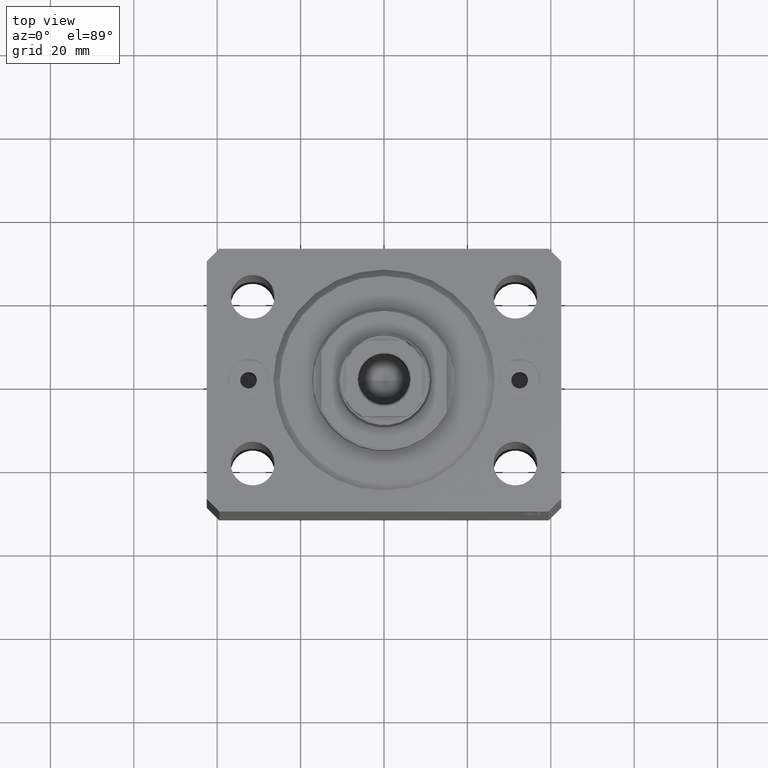
[diagram: clean part render]
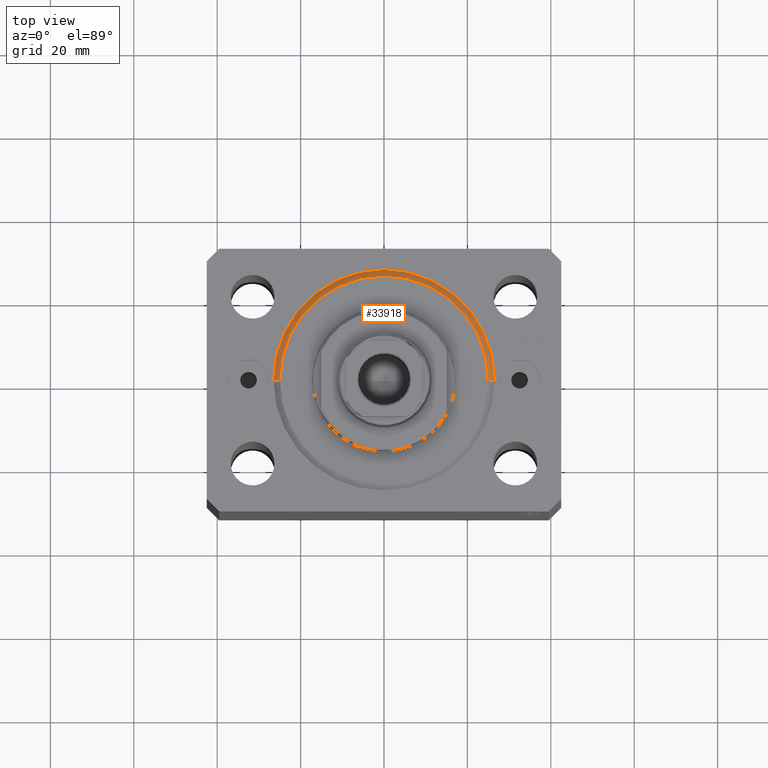
[diagram: same view with one face highlighted and labeled with its STEP entity id]
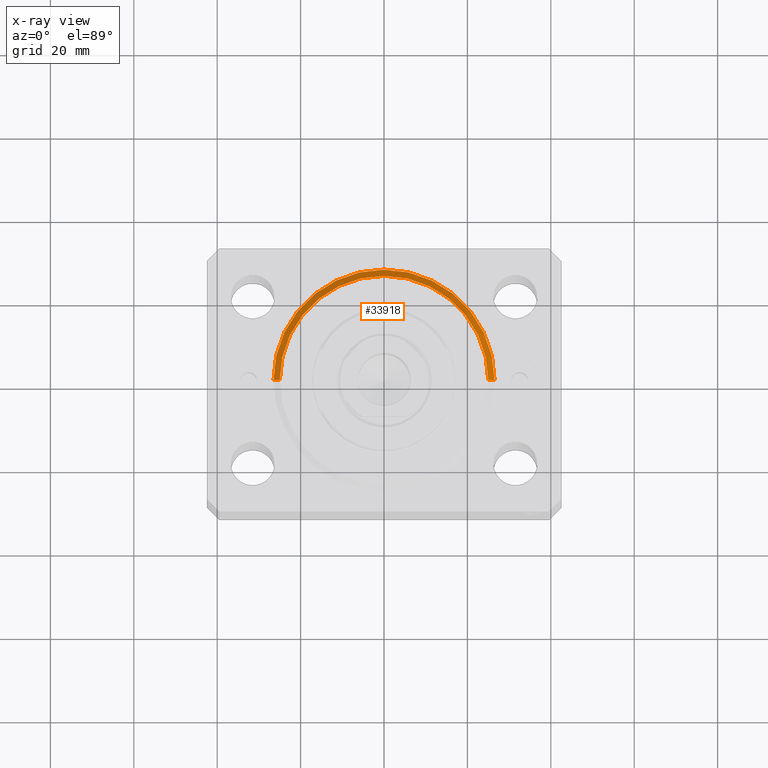
[diagram: x-ray of the same camera — body ghosted, the highlighted face saturated]
A machine part, top view. The second image highlights one B-rep face of the part: STEP entity #33918.
The next image is the same camera in x-ray: the body ghosted, the highlighted face saturated — about 0% of this face is hidden behind the body in this view.
In plain terms, the highlighted conical surface has half-angle 45 deg.
Its self-contained STEP definition (entity closure, byte-faithful):
#1691 = CARTESIAN_POINT ( 'NONE',  ( 24.99999999999995026, 0.000000000000000000, 0.000000000000000000 ) ) ;
#3291 = ORIENTED_EDGE ( 'NONE', *, *, #40502, .F. ) ;
#3428 = VERTEX_POINT ( 'NONE', #7891 ) ;
#6488 = EDGE_LOOP ( 'NONE', ( #30782, #20995, #35192, #3291 ) ) ;
#7855 = DIRECTION ( 'NONE',  ( -0.000000000000000000, -0.000000000000000000, -1.000000000000000000 ) ) ;
#7891 = CARTESIAN_POINT ( 'NONE',  ( -26.50000000000000355, 0.000000000000000000, 1.500000000000046407 ) ) ;
#8790 = CIRCLE ( 'NONE', #11640, 24.99999999999995026 ) ;
#10437 = CIRCLE ( 'NONE', #32601, 26.50000000000000355 ) ;
#10739 = DIRECTION ( 'NONE',  ( -0.000000000000000000, -0.000000000000000000, 1.000000000000000000 ) ) ;
#11225 = DIRECTION ( 'NONE',  ( 1.000000000000000000, 0.000000000000000000, 0.000000000000000000 ) ) ;
#11360 = EDGE_CURVE ( 'NONE', #38003, #3428, #17493, .T. ) ;
#11640 = AXIS2_PLACEMENT_3D ( 'NONE', #21325, #7855, #32066 ) ;
#12065 = VECTOR ( 'NONE', #37435, 1000.000000000000000 ) ;
#13294 = VERTEX_POINT ( 'NONE', #34586 ) ;
#14582 = FACE_OUTER_BOUND ( 'NONE', #6488, .T. ) ;
#14976 = VERTEX_POINT ( 'NONE', #1691 ) ;
#15932 = AXIS2_PLACEMENT_3D ( 'NONE', #37909, #27613, #11225 ) ;
#17493 = LINE ( 'NONE', #20633, #12065 ) ;
#18275 = DIRECTION ( 'NONE',  ( 0.7071067811865491270, 0.000000000000000000, 0.7071067811865459074 ) ) ;
#20633 = CARTESIAN_POINT ( 'NONE',  ( -26.50000000000000355, 3.245314017740486554E-15, 1.500000000000046407 ) ) ;
#20995 = ORIENTED_EDGE ( 'NONE', *, *, #11360, .T. ) ;
#21325 = CARTESIAN_POINT ( 'NONE',  ( 0.000000000000000000, 0.000000000000000000, 0.000000000000000000 ) ) ;
#26862 = VECTOR ( 'NONE', #18275, 1000.000000000000000 ) ;
#27613 = DIRECTION ( 'NONE',  ( -0.000000000000000000, -0.000000000000000000, 1.000000000000000000 ) ) ;
#29532 = CONICAL_SURFACE ( 'NONE', #15932, 26.50000000000000355, 0.7853981633974506105 ) ;
#30782 = ORIENTED_EDGE ( 'NONE', *, *, #34573, .F. ) ;
#32066 = DIRECTION ( 'NONE',  ( 1.000000000000000000, 0.000000000000000000, 0.000000000000000000 ) ) ;
#32601 = AXIS2_PLACEMENT_3D ( 'NONE', #42321, #10739, #38075 ) ;
#33918 = ADVANCED_FACE ( 'NONE', ( #14582 ), #29532, .T. ) ;
#34573 = EDGE_CURVE ( 'NONE', #38003, #14976, #8790, .T. ) ;
#34586 = CARTESIAN_POINT ( 'NONE',  ( 26.50000000000000355, 3.245314017740485765E-15, 1.500000000000046407 ) ) ;
#35192 = ORIENTED_EDGE ( 'NONE', *, *, #42398, .F. ) ;
#35950 = LINE ( 'NONE', #42692, #26862 ) ;
#37435 = DIRECTION ( 'NONE',  ( -0.7071067811865491270, 8.659560562354952580E-17, 0.7071067811865459074 ) ) ;
#37909 = CARTESIAN_POINT ( 'NONE',  ( 0.000000000000000000, 0.000000000000000000, 1.500000000000046407 ) ) ;
#38003 = VERTEX_POINT ( 'NONE', #41269 ) ;
#38075 = DIRECTION ( 'NONE',  ( 1.000000000000000000, 0.000000000000000000, 0.000000000000000000 ) ) ;
#40502 = EDGE_CURVE ( 'NONE', #14976, #13294, #35950, .T. ) ;
#41269 = CARTESIAN_POINT ( 'NONE',  ( -24.99999999999995026, 3.153465507804431248E-15, 0.000000000000000000 ) ) ;
#42321 = CARTESIAN_POINT ( 'NONE',  ( 0.000000000000000000, 0.000000000000000000, 1.500000000000046407 ) ) ;
#42398 = EDGE_CURVE ( 'NONE', #13294, #3428, #10437, .T. ) ;
#42692 = CARTESIAN_POINT ( 'NONE',  ( 26.50000000000000355, 0.000000000000000000, 1.500000000000046407 ) ) ;